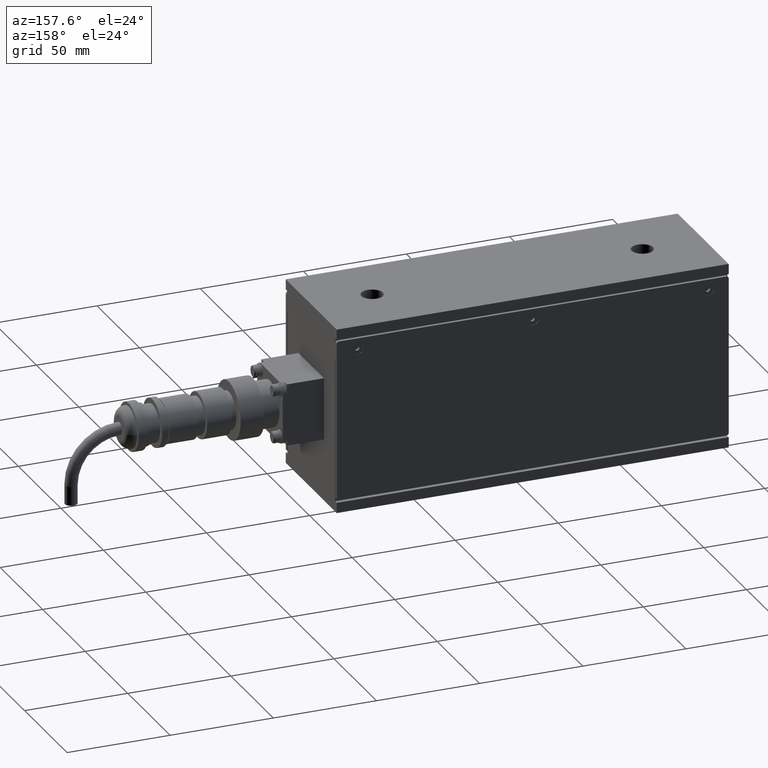
[diagram: clean part render]
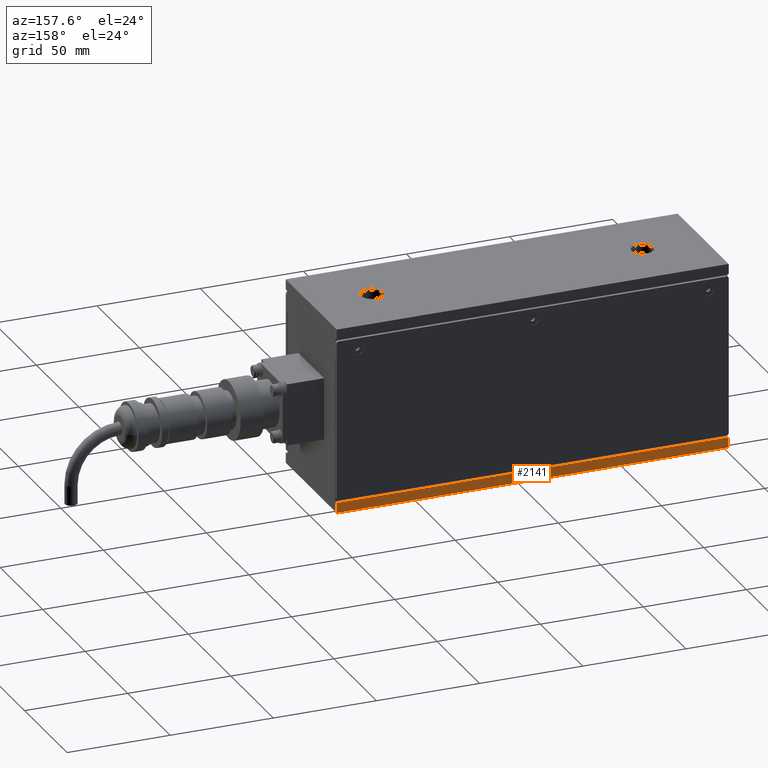
[diagram: same view with one face highlighted and labeled with its STEP entity id]
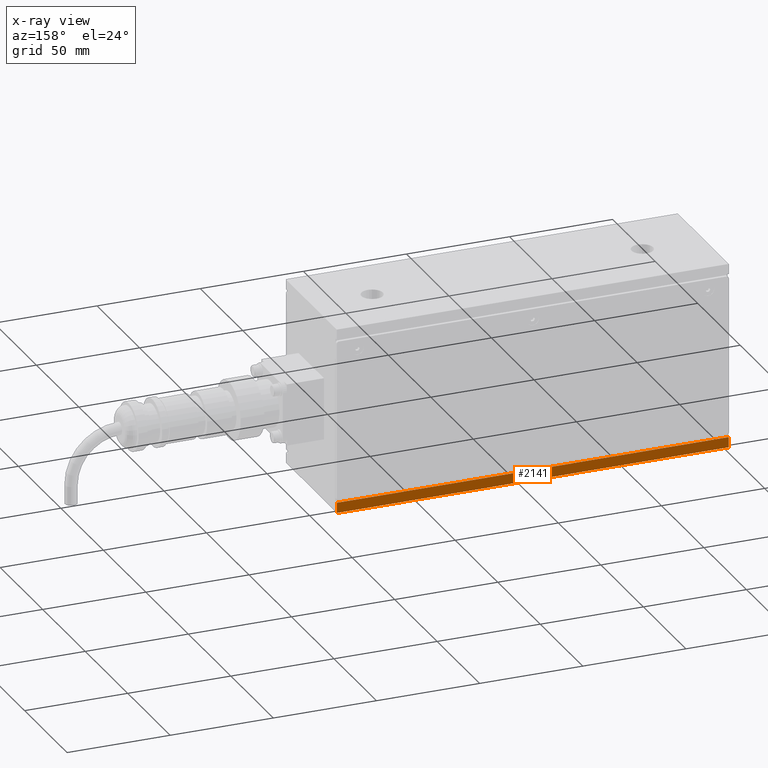
[diagram: x-ray of the same camera — body ghosted, the highlighted face saturated]
A machine part, auxiliary view. The second image highlights one B-rep face of the part: STEP entity #2141.
The next image is the same camera in x-ray: the body ghosted, the highlighted face saturated — about 0% of this face is hidden behind the body in this view.
In plain terms, the highlighted planar face has unit normal (0, 1, 0).
Its self-contained STEP definition (entity closure, byte-faithful):
#1822=CARTESIAN_POINT('',(88.042906985577417,-66.589066365486616,4.500000000000000));
#1823=VERTEX_POINT('',#1822);
#1830=CARTESIAN_POINT('',(-101.957093014422580,-66.589066365486616,4.500000000000000));
#1831=VERTEX_POINT('',#1830);
#1832=CARTESIAN_POINT('',(-101.957093014422580,-66.589066365486616,4.500000000000000));
#1833=DIRECTION('',(1.0,0.0,0.0));
#1834=VECTOR('',#1833,190.0);
#1835=LINE('',#1832,#1834);
#1836=EDGE_CURVE('',#1831,#1823,#1835,.T.);
#1890=CARTESIAN_POINT('',(88.042906985577417,-66.589066365486588,-0.500000000000000));
#1891=VERTEX_POINT('',#1890);
#1898=CARTESIAN_POINT('',(88.042906985577417,-66.589066365486588,-0.500000000000000));
#1899=DIRECTION('',(0.0,0.0,1.0));
#1900=VECTOR('',#1899,5.0);
#1901=LINE('',#1898,#1900);
#1902=EDGE_CURVE('',#1891,#1823,#1901,.T.);
#2118=CARTESIAN_POINT('',(-101.957093014422580,-66.589066365486616,-0.500000000000000));
#2119=DIRECTION('',(0.0,1.0,0.0));
#2120=DIRECTION('',(0.0,0.0,1.0));
#2121=AXIS2_PLACEMENT_3D('',#2118,#2119,#2120);
#2122=PLANE('',#2121);
#2123=ORIENTED_EDGE('',*,*,#1836,.T.);
#2124=ORIENTED_EDGE('',*,*,#1902,.F.);
#2125=CARTESIAN_POINT('',(-101.957093014422580,-66.589066365486616,-0.500000000000000));
#2126=VERTEX_POINT('',#2125);
#2127=CARTESIAN_POINT('',(-101.957093014422580,-66.589066365486616,-0.500000000000000));
#2128=DIRECTION('',(1.0,0.0,0.0));
#2129=VECTOR('',#2128,190.0);
#2130=LINE('',#2127,#2129);
#2131=EDGE_CURVE('',#2126,#1891,#2130,.T.);
#2132=ORIENTED_EDGE('',*,*,#2131,.F.);
#2133=CARTESIAN_POINT('',(-101.957093014422580,-66.589066365486616,-0.500000000000000));
#2134=DIRECTION('',(0.0,0.0,1.0));
#2135=VECTOR('',#2134,5.0);
#2136=LINE('',#2133,#2135);
#2137=EDGE_CURVE('',#2126,#1831,#2136,.T.);
#2138=ORIENTED_EDGE('',*,*,#2137,.T.);
#2139=EDGE_LOOP('',(#2123,#2124,#2132,#2138));
#2140=FACE_OUTER_BOUND('',#2139,.T.);
#2141=ADVANCED_FACE('',(#2140),#2122,.T.);